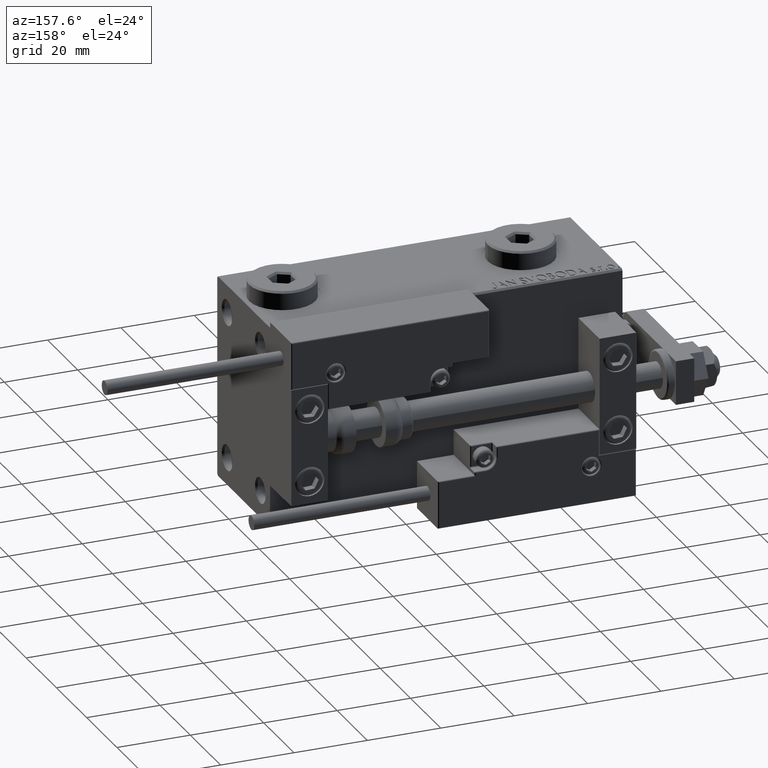
[diagram: clean part render]
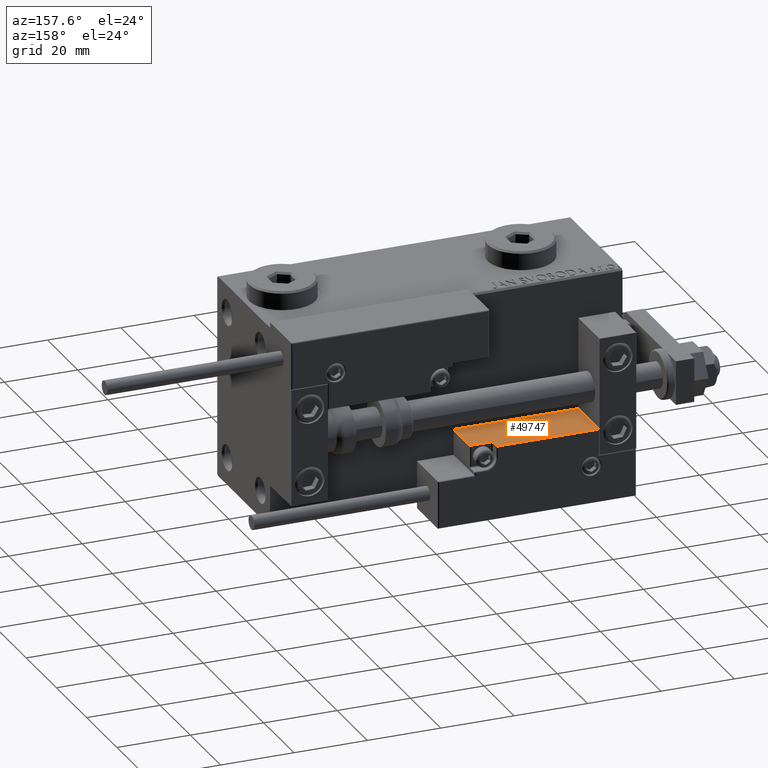
[diagram: same view with one face highlighted and labeled with its STEP entity id]
A machine part, auxiliary view. The second image highlights one B-rep face of the part: STEP entity #49747.
In plain terms, the highlighted planar face has unit normal (-0, -0, -1).
Its self-contained STEP definition (entity closure, byte-faithful):
#1505 = DIRECTION ( 'NONE',  ( -0.000000000000000000, -0.000000000000000000, -1.000000000000000000 ) ) ;
#2428 = DIRECTION ( 'NONE',  ( 0.000000000000000000, 1.000000000000000000, 0.000000000000000000 ) ) ;
#2681 = CARTESIAN_POINT ( 'NONE',  ( -16.99999999999999289, 3.252606517456513302E-15, 14.00000000000000000 ) ) ;
#3208 = DIRECTION ( 'NONE',  ( 0.000000000000000000, -0.000000000000000000, 1.000000000000000000 ) ) ;
#4186 = EDGE_CURVE ( 'NONE', #24109, #43990, #51414, .T. ) ;
#4842 = ORIENTED_EDGE ( 'NONE', *, *, #21755, .F. ) ;
#5244 = VERTEX_POINT ( 'NONE', #33820 ) ;
#5974 = VECTOR ( 'NONE', #32171, 1000.000000000000000 ) ;
#8756 = VECTOR ( 'NONE', #28034, 1000.000000000000000 ) ;
#9190 = EDGE_CURVE ( 'NONE', #28732, #5244, #37430, .T. ) ;
#9435 = CARTESIAN_POINT ( 'NONE',  ( 16.99999999999999289, 3.252606517456513302E-15, 10.69999999999999929 ) ) ;
#9519 = ORIENTED_EDGE ( 'NONE', *, *, #9190, .T. ) ;
#11259 = LINE ( 'NONE', #38420, #36210 ) ;
#11555 = CARTESIAN_POINT ( 'NONE',  ( 10.70000000000000107, 3.252606517456513302E-15, 14.00000000000000000 ) ) ;
#13330 = EDGE_CURVE ( 'NONE', #17456, #28732, #11259, .T. ) ;
#14140 = VECTOR ( 'NONE', #17746, 1000.000000000000000 ) ;
#14235 = DIRECTION ( 'NONE',  ( 0.000000000000000000, 0.000000000000000000, 1.000000000000000000 ) ) ;
#14367 = FACE_OUTER_BOUND ( 'NONE', #38887, .T. ) ;
#14400 = LINE ( 'NONE', #26365, #14513 ) ;
#14513 = VECTOR ( 'NONE', #18369, 1000.000000000000000 ) ;
#14758 = CARTESIAN_POINT ( 'NONE',  ( 11.29999999999999893, 3.252606517456513302E-15, 11.29999999999999893 ) ) ;
#17016 = CARTESIAN_POINT ( 'NONE',  ( -16.99999999999999289, 3.252606517456513302E-15, 13.70000000000000107 ) ) ;
#17456 = VERTEX_POINT ( 'NONE', #17016 ) ;
#17746 = DIRECTION ( 'NONE',  ( 1.000000000000000000, 0.000000000000000000, 0.000000000000000000 ) ) ;
#18369 = DIRECTION ( 'NONE',  ( -1.000000000000000000, 0.000000000000000000, -0.000000000000000000 ) ) ;
#18470 = DIRECTION ( 'NONE',  ( -0.000000000000000000, -1.000000000000000000, -0.000000000000000000 ) ) ;
#18970 = AXIS2_PLACEMENT_3D ( 'NONE', #2681, #2428, #3208 ) ;
#20969 = CARTESIAN_POINT ( 'NONE',  ( -16.99999999999999289, 3.252606517456513302E-15, 0.000000000000000000 ) ) ;
#21755 = EDGE_CURVE ( 'NONE', #24109, #5244, #44103, .T. ) ;
#23228 = EDGE_CURVE ( 'NONE', #31157, #17456, #14400, .T. ) ;
#24109 = VERTEX_POINT ( 'NONE', #9435 ) ;
#26365 = CARTESIAN_POINT ( 'NONE',  ( -16.99999999999999289, 3.252606517456513302E-15, 13.70000000000000107 ) ) ;
#26381 = CARTESIAN_POINT ( 'NONE',  ( -16.99999999999999289, 3.252606517456513302E-15, 0.000000000000000000 ) ) ;
#27469 = AXIS2_PLACEMENT_3D ( 'NONE', #14758, #18470, #14235 ) ;
#28034 = DIRECTION ( 'NONE',  ( 0.000000000000000000, -0.000000000000000000, 1.000000000000000000 ) ) ;
#28732 = VERTEX_POINT ( 'NONE', #26381 ) ;
#30207 = CARTESIAN_POINT ( 'NONE',  ( 11.00000000000000000, 3.252606517456513302E-15, 10.69999999999999929 ) ) ;
#31101 = PLANE ( 'NONE',  #18970 ) ;
#31118 = VECTOR ( 'NONE', #38160, 1000.000000000000000 ) ;
#31157 = VERTEX_POINT ( 'NONE', #40711 ) ;
#32171 = DIRECTION ( 'NONE',  ( -0.000000000000000000, -0.000000000000000000, -1.000000000000000000 ) ) ;
#33820 = CARTESIAN_POINT ( 'NONE',  ( 16.99999999999999289, 3.252606517456513302E-15, 0.000000000000000000 ) ) ;
#35617 = ORIENTED_EDGE ( 'NONE', *, *, #23228, .T. ) ;
#35712 = ORIENTED_EDGE ( 'NONE', *, *, #44051, .T. ) ;
#36143 = CARTESIAN_POINT ( 'NONE',  ( 16.99999999999999289, 3.252606517456513302E-15, 14.00000000000000000 ) ) ;
#36210 = VECTOR ( 'NONE', #1505, 1000.000000000000000 ) ;
#37430 = LINE ( 'NONE', #20969, #14140 ) ;
#38160 = DIRECTION ( 'NONE',  ( -1.000000000000000000, 0.000000000000000000, -0.000000000000000000 ) ) ;
#38407 = CARTESIAN_POINT ( 'NONE',  ( 10.70000000000000107, 3.252606517456513302E-15, 11.29999999999999893 ) ) ;
#38420 = CARTESIAN_POINT ( 'NONE',  ( -16.99999999999999289, 3.252606517456513302E-15, 14.00000000000000000 ) ) ;
#38659 = CARTESIAN_POINT ( 'NONE',  ( 11.29999999999999893, 3.252606517456513302E-15, 10.69999999999999929 ) ) ;
#38887 = EDGE_LOOP ( 'NONE', ( #4842, #44115, #48358, #35712, #35617, #43445, #9519 ) ) ;
#40711 = CARTESIAN_POINT ( 'NONE',  ( 10.70000000000000107, 3.252606517456513302E-15, 13.70000000000000107 ) ) ;
#41832 = CIRCLE ( 'NONE', #27469, 0.5999999999999998668 ) ;
#43445 = ORIENTED_EDGE ( 'NONE', *, *, #13330, .T. ) ;
#43990 = VERTEX_POINT ( 'NONE', #38659 ) ;
#44051 = EDGE_CURVE ( 'NONE', #44741, #31157, #51910, .T. ) ;
#44103 = LINE ( 'NONE', #36143, #5974 ) ;
#44115 = ORIENTED_EDGE ( 'NONE', *, *, #4186, .T. ) ;
#44703 = EDGE_CURVE ( 'NONE', #44741, #43990, #41832, .T. ) ;
#44741 = VERTEX_POINT ( 'NONE', #38407 ) ;
#48358 = ORIENTED_EDGE ( 'NONE', *, *, #44703, .F. ) ;
#49747 = ADVANCED_FACE ( 'NONE', ( #14367 ), #31101, .F. ) ;
#51414 = LINE ( 'NONE', #30207, #31118 ) ;
#51910 = LINE ( 'NONE', #11555, #8756 ) ;